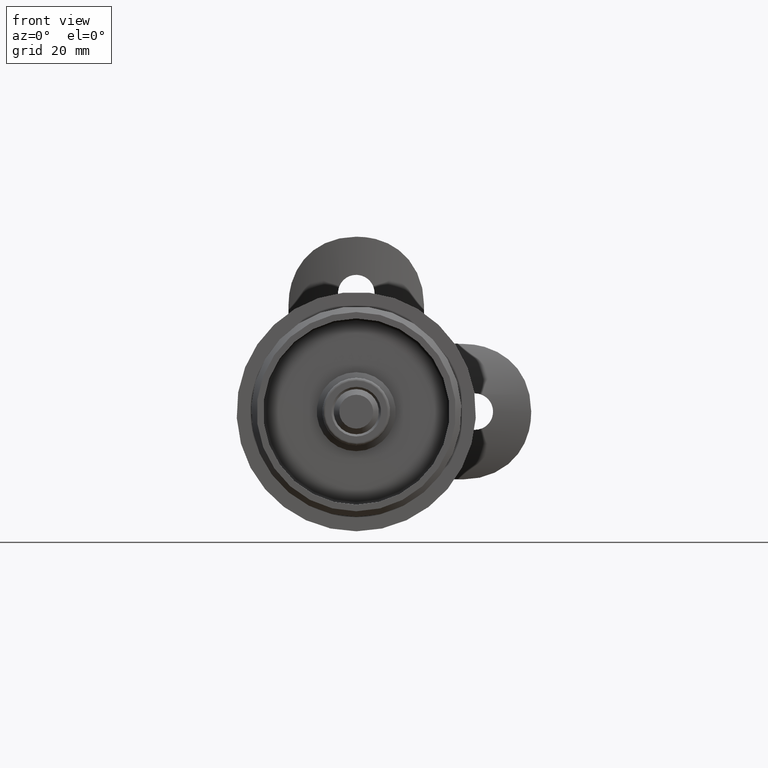
[diagram: clean part render]
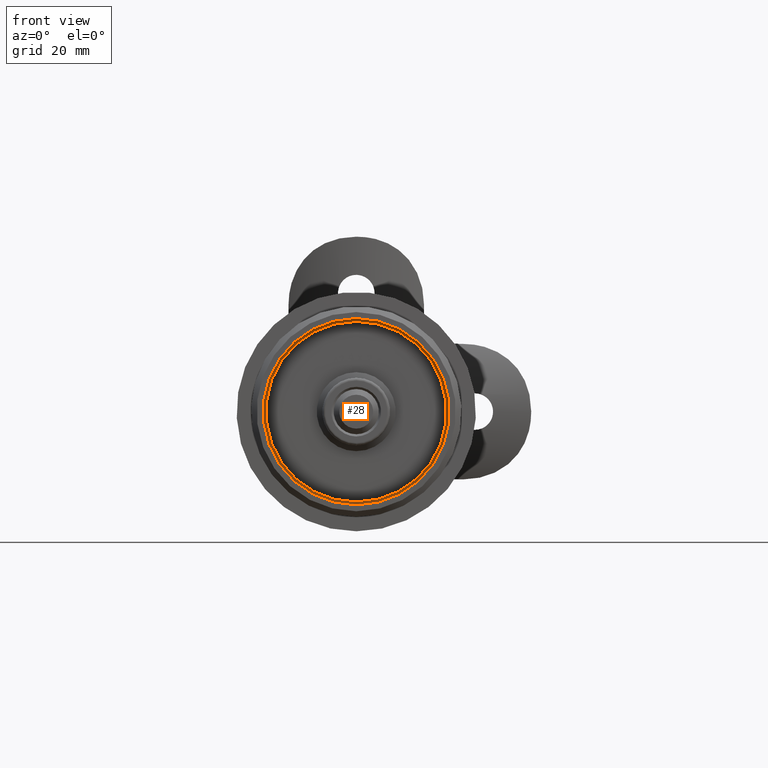
[diagram: same view with one face highlighted and labeled with its STEP entity id]
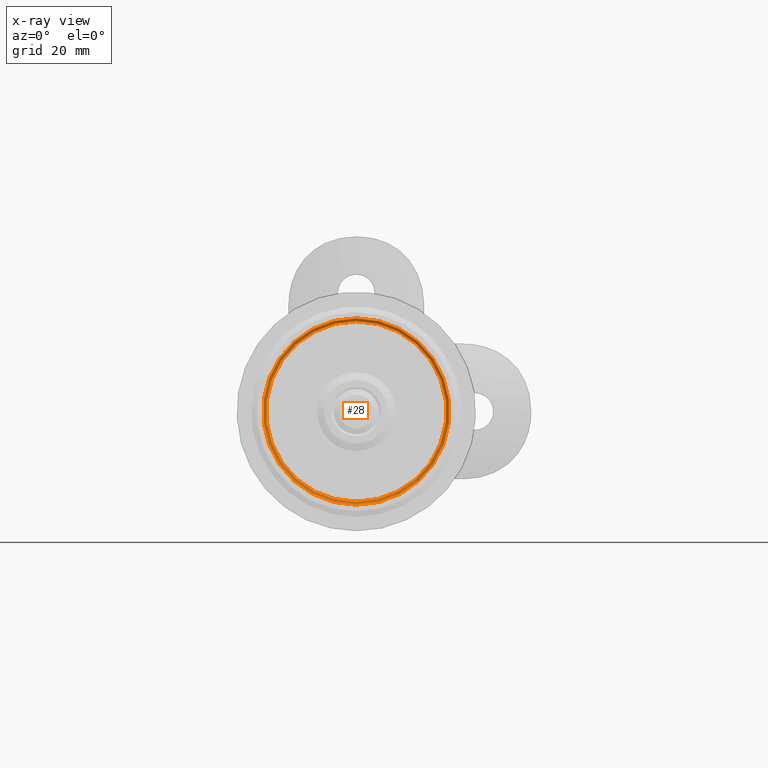
[diagram: x-ray of the same camera — body ghosted, the highlighted face saturated]
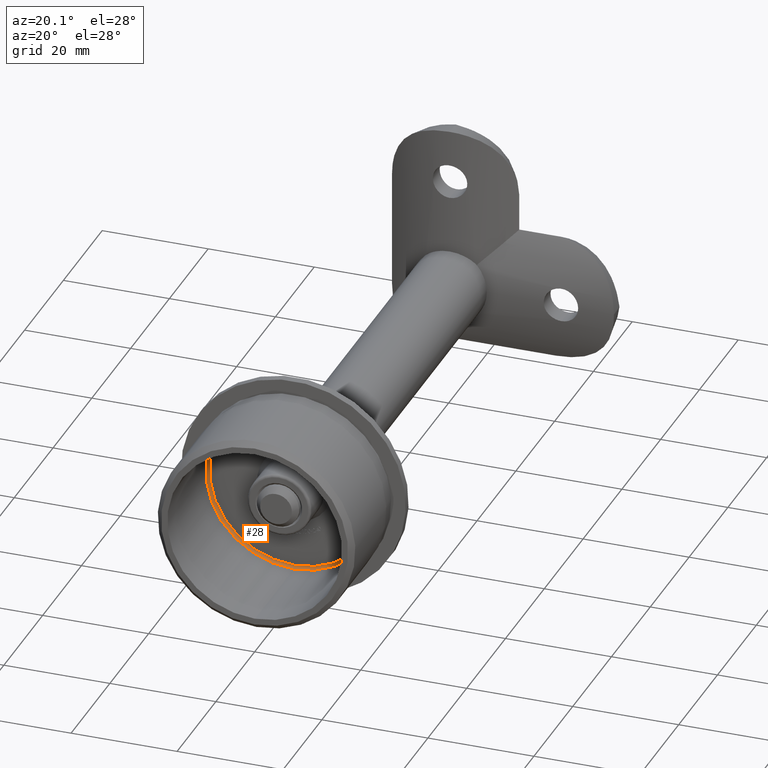
[diagram: same view with one face highlighted and labeled with its STEP entity id]
A machine part, front view. The second image highlights one B-rep face of the part: STEP entity #28.
The next image is the same camera in x-ray: the body ghosted, the highlighted face saturated — about 0% of this face is hidden behind the body in this view.
A second angle (auxiliary view) of the same face is appended — the face is thin or edge-on in the first view.
In plain terms, the highlighted toroidal blend (fillet) surface has major radius 16 mm and minor (blend) radius 0.5 mm.
Its self-contained STEP definition (entity closure, byte-faithful):
#28 = ADVANCED_FACE ( 'NONE', ( #15679, #10782 ), #8558, .F. ) ;
#1120 = DIRECTION ( 'NONE',  ( 0.000000000000000000, 0.000000000000000000, -1.000000000000000000 ) ) ;
#1532 = EDGE_LOOP ( 'NONE', ( #11419 ) ) ;
#2517 = DIRECTION ( 'NONE',  ( 0.000000000000000000, 0.000000000000000000, -1.000000000000000000 ) ) ;
#4409 = VERTEX_POINT ( 'NONE', #11780 ) ;
#5146 = DIRECTION ( 'NONE',  ( -0.000000000000000000, -1.000000000000000000, -0.000000000000000000 ) ) ;
#6036 = AXIS2_PLACEMENT_3D ( 'NONE', #11961, #19989, #2517 ) ;
#6608 = AXIS2_PLACEMENT_3D ( 'NONE', #17417, #5146, #17716 ) ;
#7881 = AXIS2_PLACEMENT_3D ( 'NONE', #15248, #13594, #1120 ) ;
#8558 = TOROIDAL_SURFACE ( 'NONE', #6608, 16.00000000000000000, 0.5000000000000022204 ) ;
#10782 = FACE_OUTER_BOUND ( 'NONE', #1532, .T. ) ;
#11419 = ORIENTED_EDGE ( 'NONE', *, *, #12817, .F. ) ;
#11517 = EDGE_CURVE ( 'NONE', #12309, #12309, #18934, .T. ) ;
#11780 = CARTESIAN_POINT ( 'NONE',  ( 0.000000000000000000, 20.50000000000000000, -16.00000000000000000 ) ) ;
#11961 = CARTESIAN_POINT ( 'NONE',  ( 0.000000000000000000, 20.00000000000000000, 0.000000000000000000 ) ) ;
#12309 = VERTEX_POINT ( 'NONE', #17808 ) ;
#12817 = EDGE_CURVE ( 'NONE', #4409, #4409, #18156, .T. ) ;
#13594 = DIRECTION ( 'NONE',  ( -0.000000000000000000, -1.000000000000000000, -0.000000000000000000 ) ) ;
#15248 = CARTESIAN_POINT ( 'NONE',  ( 0.000000000000000000, 20.50000000000000000, 0.000000000000000000 ) ) ;
#15350 = ORIENTED_EDGE ( 'NONE', *, *, #11517, .T. ) ;
#15679 = FACE_OUTER_BOUND ( 'NONE', #19306, .T. ) ;
#17417 = CARTESIAN_POINT ( 'NONE',  ( 0.000000000000000000, 20.00000000000000000, 0.000000000000000000 ) ) ;
#17716 = DIRECTION ( 'NONE',  ( 0.000000000000000000, 0.000000000000000000, -1.000000000000000000 ) ) ;
#17808 = CARTESIAN_POINT ( 'NONE',  ( 0.000000000000000000, 20.00000000000000000, -16.50000000000000355 ) ) ;
#18156 = CIRCLE ( 'NONE', #7881, 16.00000000000000000 ) ;
#18934 = CIRCLE ( 'NONE', #6036, 16.50000000000000355 ) ;
#19306 = EDGE_LOOP ( 'NONE', ( #15350 ) ) ;
#19989 = DIRECTION ( 'NONE',  ( -0.000000000000000000, -1.000000000000000000, -0.000000000000000000 ) ) ;